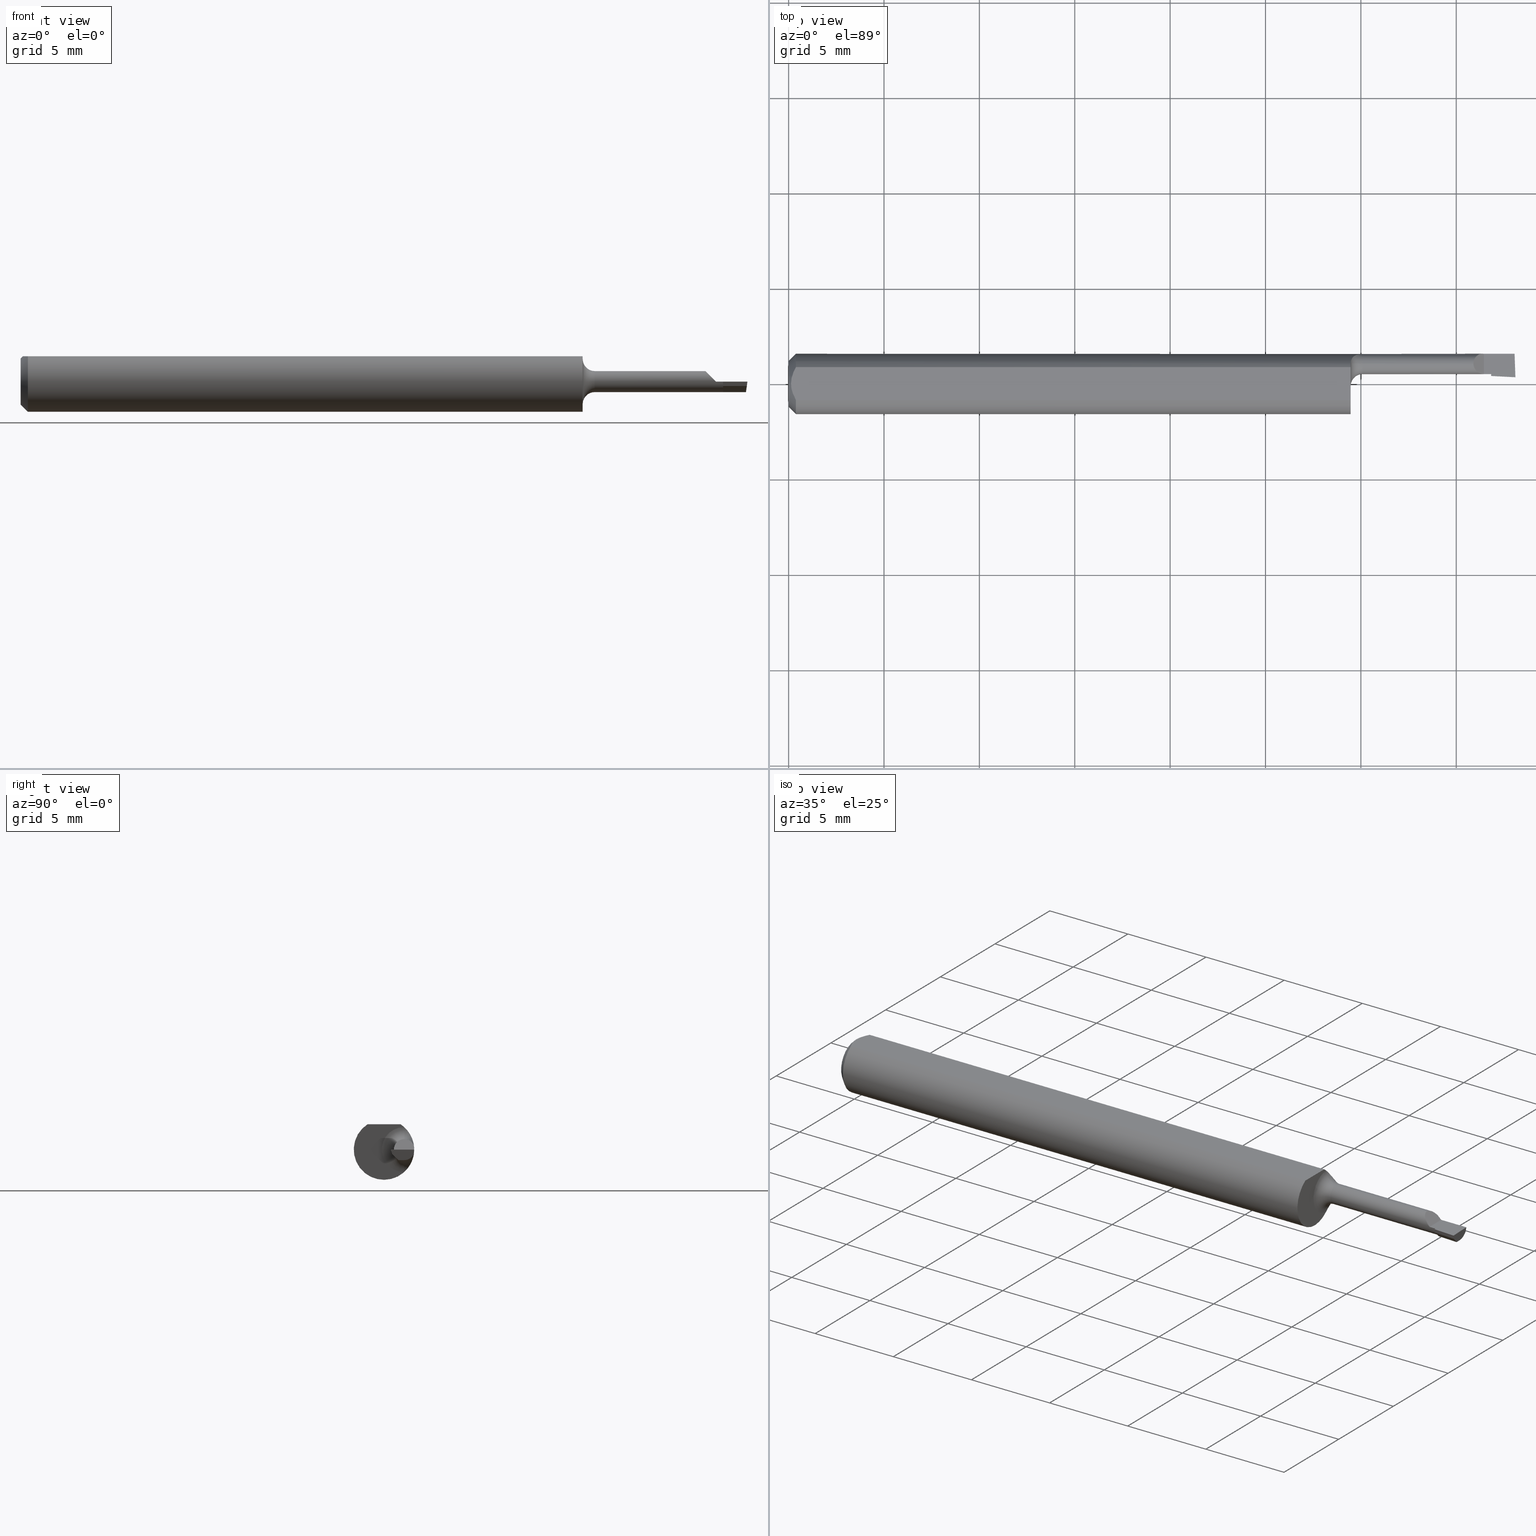
[diagram: canonical four-view strip — front | top / right | iso, engineering-drawing reading convention]
A machine part, canonical four-view strip (front | top / right | iso — engineering-drawing reading convention). The complete STEP part file that produces these views, byte-faithful:
ISO-10303-21;
HEADER;
FILE_DESCRIPTION (( 'STEP AP203' ),
    '1' );
FILE_NAME ('211800-LHB050300.STEP',
    '2024-08-22T18:05:27',
    ( '' ),
    ( '' ),
    'SwSTEP 2.0',
    'SolidWorks 2024',
    '' );
FILE_SCHEMA (( 'CONFIG_CONTROL_DESIGN' ));
ENDSEC;

DATA;
#1 = DIRECTION ( 'NONE',  ( 0.000000000000000000, -7.598598113218357399E-17, -1.000000000000000000 ) ) ;
#2 = CIRCLE ( 'NONE', #352, 0.06235000000000000264 ) ;
#3 = CARTESIAN_POINT ( 'NONE',  ( 1.435000000000000053, 0.02034999999999996187, 7.469896857675718968E-18 ) ) ;
#4 = EDGE_CURVE ( 'NONE', #273, #585, #323, .T. ) ;
#5 = CARTESIAN_POINT ( 'NONE',  ( 1.160002154187601331, 0.04179221831807067300, -0.04627107114684035627 ) ) ;
#6 = ORIENTED_EDGE ( 'NONE', *, *, #529, .F. ) ;
#7 = CC_DESIGN_PERSON_AND_ORGANIZATION_ASSIGNMENT ( #446, #135, ( #125 ) ) ;
#8 = CARTESIAN_POINT ( 'NONE',  ( 1.450000000000000178, -0.2500000000000000555, 5.746074505904401932E-18 ) ) ;
#9 = DIRECTION ( 'NONE',  ( 1.000000000000000000, 0.000000000000000000, 0.000000000000000000 ) ) ;
#10 = LINE ( 'NONE', #311, #53 ) ;
#11 = EDGE_LOOP ( 'NONE', ( #204, #123, #132, #439, #633, #126, #202, #164, #24, #61, #447, #655, #276, #601, #477 ) ) ;
#12 = FACE_OUTER_BOUND ( 'NONE', #544, .T. ) ;
#13 = CARTESIAN_POINT ( 'NONE',  ( 1.498307515265092205, 0.06234999999999984999, 4.252919012001033187E-19 ) ) ;
#14 = ORIENTED_EDGE ( 'NONE', *, *, #117, .F. ) ;
#15 = DIRECTION ( 'NONE',  ( 1.000000000000000000, 0.000000000000000000, 0.000000000000000000 ) ) ;
#16 = VECTOR ( 'NONE', #589, 39.37007874015748143 ) ;
#17 = EDGE_CURVE ( 'NONE', #157, #226, #469, .T. ) ;
#18 = FACE_OUTER_BOUND ( 'NONE', #437, .T. ) ;
#19 = APPROVAL_STATUS ( 'not_yet_approved' ) ;
#20 = ORIENTED_EDGE ( 'NONE', *, *, #51, .F. ) ;
#21 = CARTESIAN_POINT ( 'NONE',  ( 1.164503367413919577, 0.05514048125192551331, -0.02935827858479101576 ) ) ;
#22 = ADVANCED_FACE ( 'NONE', ( #637 ), #632, .F. ) ;
#23 = APPROVAL_DATE_TIME ( #329, #636 ) ;
#24 = ORIENTED_EDGE ( 'NONE', *, *, #44, .F. ) ;
#25 = B_SPLINE_CURVE_WITH_KNOTS ( 'NONE', 3,
 ( #207, #416, #628, #576, #262, #210, #213, #21, #534, #73, #174, #274 ),
 .UNSPECIFIED., .F., .F.,
 ( 4, 2, 2, 2, 2, 4 ),
 ( 1.956466010703177504E-07, 0.0001677086840062927419, 0.0003352217214115151282, 0.0006702477962219671650, 0.001005273871032419039, 0.001340299945842871347 ),
 .UNSPECIFIED. ) ;
#26 = CARTESIAN_POINT ( 'NONE',  ( 1.185000000000000275, 0.04200000000000000955, 0.000000000000000000 ) ) ;
#27 = ADVANCED_FACE ( 'NONE', ( #481 ), #512, .F. ) ;
#28 = CIRCLE ( 'NONE', #523, 0.02165000000000004768 ) ;
#29 = DATE_AND_TIME ( #284, #607 ) ;
#30 = ORGANIZATION ( 'UNSPECIFIED', 'UNSPECIFIED', '' ) ;
#31 = EDGE_LOOP ( 'NONE', ( #6, #560, #537, #143, #508, #377 ) ) ;
#32 = FACE_OUTER_BOUND ( 'NONE', #335, .T. ) ;
#33 = FACE_OUTER_BOUND ( 'NONE', #472, .T. ) ;
#34 = DATE_TIME_ROLE ( 'classification_date' ) ;
#35 = ORIENTED_EDGE ( 'NONE', *, *, #112, .F. ) ;
#36 = DIRECTION ( 'NONE',  ( 0.000000000000000000, 0.000000000000000000, 1.000000000000000000 ) ) ;
#37 = PERSON_AND_ORGANIZATION ( #526, #30 ) ;
#38 = ORIENTED_EDGE ( 'NONE', *, *, #51, .T. ) ;
#39 = DIRECTION ( 'NONE',  ( -0.03489949670250591662, 0.9993908270190955401, 4.749892244972772008E-18 ) ) ;
#40 = CARTESIAN_POINT ( 'NONE',  ( 1.500000000000000666, 0.01388357845370044759, 1.723411917878041112E-16 ) ) ;
#41 = CIRCLE ( 'NONE', #428, 0.06235000000000000264 ) ;
#42 = VERTEX_POINT ( 'NONE', #422 ) ;
#43 = AXIS2_PLACEMENT_3D ( 'NONE', #608, #138, #401 ) ;
#44 = EDGE_CURVE ( 'NONE', #69, #531, #41, .T. ) ;
#45 = CARTESIAN_POINT ( 'NONE',  ( 1.413349999999999662, 0.05073296928954763862, 0.02165000000000002686 ) ) ;
#46 = CARTESIAN_POINT ( 'NONE',  ( 1.498307515265092205, 0.06234999999999984999, 4.252919012001033187E-19 ) ) ;
#47 = VERTEX_POINT ( 'NONE', #109 ) ;
#48 = PLANE ( 'NONE',  #152 ) ;
#49 = PRODUCT_RELATED_PRODUCT_CATEGORY ( 'detail', '', ( #613 ) ) ;
#50 = CARTESIAN_POINT ( 'NONE',  ( 0.004999999999989933504, 7.898418140378181697E-16, 0.05235000000000000070 ) ) ;
#51 = EDGE_CURVE ( 'NONE', #47, #585, #58, .T. ) ;
#52 = ORIENTED_EDGE ( 'NONE', *, *, #148, .T. ) ;
#53 = VECTOR ( 'NONE', #425, 39.37007874015748143 ) ;
#54 = VECTOR ( 'NONE', #645, 39.37007874015748143 ) ;
#55 = DIRECTION ( 'NONE',  ( -1.000000000000000000, -0.000000000000000000, -0.000000000000000000 ) ) ;
#56 = CARTESIAN_POINT ( 'NONE',  ( 1.473758310345527622, 0.01296719845820266427, -0.2304607446100246093 ) ) ;
#57 = DESIGN_CONTEXT ( 'detailed design', #383, 'design' ) ;
#58 = LINE ( 'NONE', #642, #318 ) ;
#59 = DIRECTION ( 'NONE',  ( -0.9929665985475222278, -0.03467515770088774874, 0.1132032137679070405 ) ) ;
#60 = DIRECTION ( 'NONE',  ( -0.000000000000000000, 1.000000000000000000, -9.469800310816217580E-17 ) ) ;
#61 = ORIENTED_EDGE ( 'NONE', *, *, #561, .T. ) ;
#62 = LINE ( 'NONE', #522, #101 ) ;
#63 = DIRECTION ( 'NONE',  ( 0.1183632232296001896, -0.3128294419703177009, 0.9424053732992185850 ) ) ;
#64 = ORIENTED_EDGE ( 'NONE', *, *, #683, .F. ) ;
#65 = CARTESIAN_POINT ( 'NONE',  ( 0.01500000000000185039, -0.03386738844380016850, 0.05235000000000000070 ) ) ;
#66 = EDGE_CURVE ( 'NONE', #585, #305, #391, .T. ) ;
#67 = CARTESIAN_POINT ( 'NONE',  ( 1.450000000000000178, 0.006470388964151904676, 0.000000000000000000 ) ) ;
#68 = CARTESIAN_POINT ( 'NONE',  ( 1.450000000000000178, 0.04200000000000000955, -0.02165000000000000951 ) ) ;
#69 = VERTEX_POINT ( 'NONE', #376 ) ;
#70 = DIRECTION ( 'NONE',  ( 0.000000000000000000, 0.000000000000000000, 1.000000000000000000 ) ) ;
#71 = CARTESIAN_POINT ( 'NONE',  ( 1.445230175387622662, 0.01968223371965590121, -0.008999999999999999320 ) ) ;
#72 = ORIENTED_EDGE ( 'NONE', *, *, #330, .T. ) ;
#73 = CARTESIAN_POINT ( 'NONE',  ( 1.160670077248453946, 0.04815584287052725176, -0.03982895007941800181 ) ) ;
#74 = PERSON_AND_ORGANIZATION ( #526, #30 ) ;
#75 = VERTEX_POINT ( 'NONE', #220 ) ;
#76 = CARTESIAN_POINT ( 'NONE',  ( 1.500000000000000222, 0.04200000000000000955, -0.02165000000000000951 ) ) ;
#77 = ORIENTED_EDGE ( 'NONE', *, *, #4, .F. ) ;
#78 = LINE ( 'NONE', #283, #676 ) ;
#79 = PERSON_AND_ORGANIZATION_ROLE ( 'classification_officer' ) ;
#80 = ORIENTED_EDGE ( 'NONE', *, *, #624, .F. ) ;
#81 = CARTESIAN_POINT ( 'NONE',  ( 0.000000000000000000, 0.04200000000000000955, 0.02165000000000002686 ) ) ;
#82 = CARTESIAN_POINT ( 'NONE',  ( 1.185000000000000275, 0.04200000000000000955, 0.04665000000000004560 ) ) ;
#83 = CIRCLE ( 'NONE', #618, 0.02165000000000000951 ) ;
#84 = PERSON_AND_ORGANIZATION_ROLE ( 'creator' ) ;
#85 = VECTOR ( 'NONE', #363, 39.37007874015748143 ) ;
#86 = ORIENTED_EDGE ( 'NONE', *, *, #117, .T. ) ;
#87 = CARTESIAN_POINT ( 'NONE',  ( 1.413349999999999884, 0.04200000000000000955, 0.02165000000000002686 ) ) ;
#88 = EDGE_LOOP ( 'NONE', ( #194, #380 ) ) ;
#89 = APPROVAL ( #19, 'UNSPECIFIED' ) ;
#90 = ORIENTED_EDGE ( 'NONE', *, *, #107, .F. ) ;
#91 = EDGE_CURVE ( 'NONE', #434, #498, #10, .T. ) ;
#92 = CARTESIAN_POINT ( 'NONE',  ( 1.418074042879263752, 0.05807791118768803468, 0.01692595712073615907 ) ) ;
#93 = DIRECTION ( 'NONE',  ( 0.000000000000000000, 0.000000000000000000, 1.000000000000000000 ) ) ;
#94 = CIRCLE ( 'NONE', #539, 0.02165000000000004768 ) ;
#95 = CARTESIAN_POINT ( 'NONE',  ( 1.500000000000000222, 0.04200000000000000955, -0.02165000000000000951 ) ) ;
#96 = VERTEX_POINT ( 'NONE', #371 ) ;
#97 = CARTESIAN_POINT ( 'NONE',  ( 0.000000000000000000, 6.717187693323211459E-18, 0.04734999999999965625 ) ) ;
#98 = PRODUCT_DEFINITION ( 'UNKNOWN', '', #125, #57 ) ;
#99 = CARTESIAN_POINT ( 'NONE',  ( 0.000000000000000000, 0.000000000000000000, 0.000000000000000000 ) ) ;
#100 = VECTOR ( 'NONE', #275, 39.37007874015748143 ) ;
#101 = VECTOR ( 'NONE', #516, 39.37007874015748143 ) ;
#102 = CC_DESIGN_SECURITY_CLASSIFICATION ( #641, ( #125 ) ) ;
#103 = CARTESIAN_POINT ( 'NONE',  ( 1.422317723625377450, 0.02034999999999997575, 0.01268227637462250416 ) ) ;
#104 = LINE ( 'NONE', #518, #386 ) ;
#105 = DIRECTION ( 'NONE',  ( 0.000000000000000000, 0.000000000000000000, 1.000000000000000000 ) ) ;
#106 = ORIENTED_EDGE ( 'NONE', *, *, #330, .F. ) ;
#107 = EDGE_CURVE ( 'NONE', #272, #463, #343, .T. ) ;
#108 = CARTESIAN_POINT ( 'NONE',  ( 1.317500000000000115, 0.06169999999999998402, 0.008979560122856904483 ) ) ;
#109 = CARTESIAN_POINT ( 'NONE',  ( 1.496981654460871614, 0.02963741380368778433, -0.02165000000000000951 ) ) ;
#110 = CIRCLE ( 'NONE', #308, 0.02165000000000004768 ) ;
#111 = CIRCLE ( 'NONE', #514, 0.06235000000000000264 ) ;
#112 = EDGE_CURVE ( 'NONE', #273, #186, #119, .T. ) ;
#113 = LINE ( 'NONE', #634, #332 ) ;
#114 = EDGE_LOOP ( 'NONE', ( #342, #173, #440 ) ) ;
#115 = ORIENTED_EDGE ( 'NONE', *, *, #249, .F. ) ;
#116 = LINE ( 'NONE', #161, #288 ) ;
#117 = EDGE_CURVE ( 'NONE', #47, #157, #104, .T. ) ;
#118 = DIRECTION ( 'NONE',  ( 0.000000000000000000, 0.000000000000000000, 1.000000000000000000 ) ) ;
#119 = LINE ( 'NONE', #476, #467 ) ;
#120 = EDGE_LOOP ( 'NONE', ( #14, #38, #77, #348 ) ) ;
#121 = CARTESIAN_POINT ( 'NONE',  ( 0.01500000000000000465, 0.000000000000000000, -0.06235000000000000264 ) ) ;
#122 =( NAMED_UNIT ( * ) PLANE_ANGLE_UNIT ( ) SI_UNIT ( $, .RADIAN. ) );
#123 = ORIENTED_EDGE ( 'NONE', *, *, #107, .T. ) ;
#124 = CARTESIAN_POINT ( 'NONE',  ( 1.175584872132278358, 0.06074967455721213411, 0.01413090964346022486 ) ) ;
#125 = PRODUCT_DEFINITION_FORMATION_WITH_SPECIFIED_SOURCE ( 'ANY', '', #613, .NOT_KNOWN. ) ;
#126 = ORIENTED_EDGE ( 'NONE', *, *, #406, .T. ) ;
#127 = CARTESIAN_POINT ( 'NONE',  ( 0.01500000000000000465, 0.000000000000000000, 0.000000000000000000 ) ) ;
#128 = APPLICATION_PROTOCOL_DEFINITION ( 'international standard', 'config_control_design', 1994, #383 ) ;
#129 = ORIENTED_EDGE ( 'NONE', *, *, #411, .T. ) ;
#130 = CARTESIAN_POINT ( 'NONE',  ( 0.000000000000000000, 0.04200000000000000955, 0.000000000000000000 ) ) ;
#131 = PERSON_AND_ORGANIZATION ( #526, #30 ) ;
#132 = ORIENTED_EDGE ( 'NONE', *, *, #499, .T. ) ;
#133 = CARTESIAN_POINT ( 'NONE',  ( 1.435000000000000053, 0.06234999999999984999, 7.469896857675718968E-18 ) ) ;
#134 = CIRCLE ( 'NONE', #448, 0.02500000000000000139 ) ;
#135 = PERSON_AND_ORGANIZATION_ROLE ( 'design_supplier' ) ;
#136 = APPROVAL_PERSON_ORGANIZATION ( #278, #89, #183 ) ;
#137 = ORIENTED_EDGE ( 'NONE', *, *, #403, .F. ) ;
#138 = DIRECTION ( 'NONE',  ( -0.7071067811865432429, 0.000000000000000000, -0.7071067811865517916 ) ) ;
#139 = FACE_OUTER_BOUND ( 'NONE', #177, .T. ) ;
#140 = EDGE_CURVE ( 'NONE', #226, #498, #83, .T. ) ;
#141 = ORIENTED_EDGE ( 'NONE', *, *, #339, .F. ) ;
#142 = DIRECTION ( 'NONE',  ( 0.000000000000000000, 0.000000000000000000, -1.000000000000000000 ) ) ;
#143 = ORIENTED_EDGE ( 'NONE', *, *, #298, .F. ) ;
#144 = CARTESIAN_POINT ( 'NONE',  ( 0.000000000000000000, 0.000000000000000000, -0.04734999999999965625 ) ) ;
#145 = B_SPLINE_CURVE_WITH_KNOTS ( 'NONE', 3,
 ( #270, #387, #324, #328 ),
 .UNSPECIFIED., .F., .F.,
 ( 4, 4 ),
 ( 4.582666268723168045E-07, 2.170104865268451287E-05 ),
 .UNSPECIFIED. ) ;
#146 = CLOSED_SHELL ( 'NONE', ( #175, #196, #27, #350, #621, #465, #456, #679, #22, #312, #574, #444, #242, #671, #307, #155, #230, #206, #389 ) ) ;
#147 = APPROVAL_PERSON_ORGANIZATION ( #131, #464, #399 ) ;
#148 = EDGE_CURVE ( 'NONE', #241, #75, #28, .T. ) ;
#149 = PLANE ( 'NONE',  #675 ) ;
#150 = FACE_OUTER_BOUND ( 'NONE', #264, .T. ) ;
#151 = FACE_OUTER_BOUND ( 'NONE', #491, .T. ) ;
#152 = AXIS2_PLACEMENT_3D ( 'NONE', #289, #402, #349 ) ;
#153 = AXIS2_PLACEMENT_3D ( 'NONE', #490, #654, #556 ) ;
#154 = CARTESIAN_POINT ( 'NONE',  ( 0.000000000000000000, 0.04200000000000000955, 0.000000000000000000 ) ) ;
#155 = ADVANCED_FACE ( 'NONE', ( #185 ), #394, .F. ) ;
#156 = CARTESIAN_POINT ( 'NONE',  ( 1.159999999999991482, 0.04158309226468336756, -0.04645910121876680593 ) ) ;
#157 = VERTEX_POINT ( 'NONE', #493 ) ;
#158 = DIRECTION ( 'NONE',  ( 0.000000000000000000, 0.000000000000000000, 1.000000000000000000 ) ) ;
#159 = CARTESIAN_POINT ( 'NONE',  ( 0.004999999999989933504, 7.898418140378181697E-16, 0.05235000000000000070 ) ) ;
#160 = CARTESIAN_POINT ( 'NONE',  ( 0.01500000000000000465, 0.000000000000000000, 0.000000000000000000 ) ) ;
#161 = CARTESIAN_POINT ( 'NONE',  ( 1.513791672468667526, 0.01316078752701859214, -1.584959551319857884E-18 ) ) ;
#162 = CARTESIAN_POINT ( 'NONE',  ( 1.435000000000000053, -0.2500000000000000555, 7.469896857675718968E-18 ) ) ;
#163 = ORIENTED_EDGE ( 'NONE', *, *, #519, .F. ) ;
#164 = ORIENTED_EDGE ( 'NONE', *, *, #649, .F. ) ;
#165 = EDGE_CURVE ( 'NONE', #42, #75, #134, .T. ) ;
#166 = CONICAL_SURFACE ( 'NONE', #552, 0.06235000000000000264, 0.7853981633974596033 ) ;
#167 = VECTOR ( 'NONE', #251, 39.37007874015748143 ) ;
#168 = CARTESIAN_POINT ( 'NONE',  ( 1.171137345355671933, 0.05951103980767498414, 0.01888626235242482979 ) ) ;
#169 = CARTESIAN_POINT ( 'NONE',  ( 1.497630533948310916, 0.06213295572546700257, -0.006004651787055691192 ) ) ;
#170 = ORIENTED_EDGE ( 'NONE', *, *, #91, .T. ) ;
#171 = LINE ( 'NONE', #378, #16 ) ;
#172 = LINE ( 'NONE', #162, #564 ) ;
#173 = ORIENTED_EDGE ( 'NONE', *, *, #165, .T. ) ;
#174 = CARTESIAN_POINT ( 'NONE',  ( 1.160074194741583575, 0.04526839251566676381, -0.04310279966243765054 ) ) ;
#175 = ADVANCED_FACE ( 'NONE', ( #139 ), #599, .T. ) ;
#176 = PERSON_AND_ORGANIZATION_ROLE ( 'creator' ) ;
#177 = EDGE_LOOP ( 'NONE', ( #551, #672, #245, #643, #532 ) ) ;
#178 = AXIS2_PLACEMENT_3D ( 'NONE', #26, #315, #236 ) ;
#179 = CARTESIAN_POINT ( 'NONE',  ( 1.177175290836501409, 0.06107452517360630745, 0.01261403876978727141 ) ) ;
#180 = AXIS2_PLACEMENT_3D ( 'NONE', #225, #590, #118 ) ;
#181 = EDGE_LOOP ( 'NONE', ( #393, #291, #86, #367 ) ) ;
#182 = DIRECTION ( 'NONE',  ( -1.000000000000000000, -0.000000000000000000, -0.000000000000000000 ) ) ;
#183 = APPROVAL_ROLE ( '' ) ;
#184 = ORIENTED_EDGE ( 'NONE', *, *, #545, .T. ) ;
#185 = FACE_OUTER_BOUND ( 'NONE', #181, .T. ) ;
#186 = VERTEX_POINT ( 'NONE', #453 ) ;
#187 = CIRCLE ( 'NONE', #582, 0.04734999999999965625 ) ;
#188 = CARTESIAN_POINT ( 'NONE',  ( 1.444907080710536862, 0.01351722002310443670, 0.01000000000000000021 ) ) ;
#189 = VECTOR ( 'NONE', #504, 39.37007874015748143 ) ;
#190 = APPROVAL_STATUS ( 'not_yet_approved' ) ;
#191 = VECTOR ( 'NONE', #39, 39.37007874015748143 ) ;
#192 = ORIENTED_EDGE ( 'NONE', *, *, #384, .F. ) ;
#193 = DIRECTION ( 'NONE',  ( 0.000000000000000000, -1.000000000000000000, 0.000000000000000000 ) ) ;
#194 = ORIENTED_EDGE ( 'NONE', *, *, #614, .T. ) ;
#195 = FACE_OUTER_BOUND ( 'NONE', #452, .T. ) ;
#196 = ADVANCED_FACE ( 'NONE', ( #301 ), #197, .T. ) ;
#197 = CYLINDRICAL_SURFACE ( 'NONE', #234, 0.02165000000000002686 ) ;
#198 = AXIS2_PLACEMENT_3D ( 'NONE', #154, #511, #678 ) ;
#199 = VERTEX_POINT ( 'NONE', #144 ) ;
#200 = DIRECTION ( 'NONE',  ( 1.000000000000000000, 0.000000000000000000, 0.000000000000000000 ) ) ;
#201 = DIRECTION ( 'NONE',  ( -1.000000000000000000, -0.000000000000000000, -0.000000000000000000 ) ) ;
#202 = ORIENTED_EDGE ( 'NONE', *, *, #519, .T. ) ;
#203 = DIRECTION ( 'NONE',  ( 0.7071067811865395791, 0.000000000000000000, -0.7071067811865555663 ) ) ;
#204 = ORIENTED_EDGE ( 'NONE', *, *, #659, .T. ) ;
#205 = CC_DESIGN_DATE_AND_TIME_ASSIGNMENT ( #240, #547, ( #98 ) ) ;
#206 = ADVANCED_FACE ( 'NONE', ( #507 ), #48, .F. ) ;
#207 = CARTESIAN_POINT ( 'NONE',  ( 1.185000000000000275, 0.06170000000000000484, -0.008979560122856930504 ) ) ;
#208 = ORIENTED_EDGE ( 'NONE', *, *, #325, .T. ) ;
#209 = AXIS2_PLACEMENT_3D ( 'NONE', #253, #200, #622 ) ;
#210 = CARTESIAN_POINT ( 'NONE',  ( 1.171164219611748880, 0.05951808255707905643, -0.01885829980402589645 ) ) ;
#211 = FACE_OUTER_BOUND ( 'NONE', #281, .T. ) ;
#212 = ORIENTED_EDGE ( 'NONE', *, *, #652, .T. ) ;
#213 = CARTESIAN_POINT ( 'NONE',  ( 1.168638811239069764, 0.05833681936465647672, -0.02234271023335328982 ) ) ;
#214 = DIRECTION ( 'NONE',  ( 0.000000000000000000, 0.000000000000000000, -1.000000000000000000 ) ) ;
#215 = EDGE_CURVE ( 'NONE', #96, #297, #653, .T. ) ;
#216 = DIRECTION ( 'NONE',  ( 0.1044745908303220117, -0.7064477862276269393, 0.7000118464747019376 ) ) ;
#217 = ORIENTED_EDGE ( 'NONE', *, *, #384, .T. ) ;
#218 = DIRECTION ( 'NONE',  ( 0.7071067811865395791, 8.659560562355031466E-17, 0.7071067811865555663 ) ) ;
#219 = CC_DESIGN_PERSON_AND_ORGANIZATION_ASSIGNMENT ( #290, #665, ( #613 ) ) ;
#220 = CARTESIAN_POINT ( 'NONE',  ( 1.185000000000000275, 0.04200000000000000955, 0.02165000000000004768 ) ) ;
#221 = VERTEX_POINT ( 'NONE', #455 ) ;
#222 = VECTOR ( 'NONE', #63, 39.37007874015748143 ) ;
#223 = CARTESIAN_POINT ( 'NONE',  ( 1.160006460274299878, 0.04199999999999771277, 0.04608169376227606862 ) ) ;
#224 =( BOUNDED_CURVE ( )  B_SPLINE_CURVE ( 3, ( #581, #227, #528, #478 ),
 .UNSPECIFIED., .F., .T. ) 
 B_SPLINE_CURVE_WITH_KNOTS ( ( 4, 4 ),
 ( 5.437303047992022798, 6.580420033176219263 ),
 .UNSPECIFIED. ) 
 CURVE ( )  GEOMETRIC_REPRESENTATION_ITEM ( )  RATIONAL_B_SPLINE_CURVE ( ( 1.000000000000000000, 0.8940392936708234650, 0.8940392936708234650, 1.000000000000000000 ) ) 
 REPRESENTATION_ITEM ( '' )  );
#225 = CARTESIAN_POINT ( 'NONE',  ( 0.000000000000000000, 0.000000000000000000, 0.000000000000000000 ) ) ;
#226 = VERTEX_POINT ( 'NONE', #340 ) ;
#227 = CARTESIAN_POINT ( 'NONE',  ( 1.496527055185697952, 0.05807791118768796529, -0.01692595712073620765 ) ) ;
#228 = APPROVAL_DATE_TIME ( #231, #89 ) ;
#229 = DIRECTION ( 'NONE',  ( -1.000000000000000000, -0.000000000000000000, -0.000000000000000000 ) ) ;
#230 = ADVANCED_FACE ( 'NONE', ( #195 ), #673, .F. ) ;
#231 = DATE_AND_TIME ( #543, #235 ) ;
#232 = UNCERTAINTY_MEASURE_WITH_UNIT (LENGTH_MEASURE( 1.000000000000000082E-05 ), #271, 'distance_accuracy_value', 'NONE');
#233 = ORIENTED_EDGE ( 'NONE', *, *, #379, .T. ) ;
#234 = AXIS2_PLACEMENT_3D ( 'NONE', #667, #565, #93 ) ;
#235 = LOCAL_TIME ( 11, 5, 27.00000000000000000, #334 ) ;
#236 = DIRECTION ( 'NONE',  ( 0.000000000000000000, 0.000000000000000000, 1.000000000000000000 ) ) ;
#237 = B_SPLINE_CURVE_WITH_KNOTS ( 'NONE', 3,
 ( #462, #5, #156, #530 ),
 .UNSPECIFIED., .F., .F.,
 ( 4, 4 ),
 ( 0.001340299945842871347, 0.001361598575378359429 ),
 .UNSPECIFIED. ) ;
#238 = VERTEX_POINT ( 'NONE', #87 ) ;
#239 = CARTESIAN_POINT ( 'NONE',  ( 1.160000000000000142, -0.004650000000000042120, 0.000000000000000000 ) ) ;
#240 = DATE_AND_TIME ( #497, #409 ) ;
#241 = VERTEX_POINT ( 'NONE', #550 ) ;
#242 = ADVANCED_FACE ( 'NONE', ( #33 ), #612, .F. ) ;
#243 = DIRECTION ( 'NONE',  ( 0.000000000000000000, 0.000000000000000000, 1.000000000000000000 ) ) ;
#244 = APPROVAL_ROLE ( '' ) ;
#245 = ORIENTED_EDGE ( 'NONE', *, *, #325, .F. ) ;
#246 = TOROIDAL_SURFACE ( 'NONE', #299, 0.04665000000000004560, 0.02500000000000000139 ) ;
#247 = CARTESIAN_POINT ( 'NONE',  ( 1.413349999999999884, 0.04200000000000000955, 0.02165000000000002686 ) ) ;
#248 = ORIENTED_EDGE ( 'NONE', *, *, #4, .T. ) ;
#249 = EDGE_CURVE ( 'NONE', #75, #482, #110, .T. ) ;
#250 = DIRECTION ( 'NONE',  ( -0.000000000000000000, 9.469800310816217580E-17, 1.000000000000000000 ) ) ;
#251 = DIRECTION ( 'NONE',  ( 0.000000000000000000, -0.7075914797155321567, 0.7066217501846258076 ) ) ;
#252 = CARTESIAN_POINT ( 'NONE',  ( 1.160000000000000142, 0.000000000000000000, 0.000000000000000000 ) ) ;
#253 = CARTESIAN_POINT ( 'NONE',  ( 0.01500000000000000465, 0.000000000000000000, 0.000000000000000000 ) ) ;
#254 = CARTESIAN_POINT ( 'NONE',  ( 0.004999999999999268051, 0.005945714695019509340, 0.05235000000000000070 ) ) ;
#255 = AXIS2_PLACEMENT_3D ( 'NONE', #629, #1, #319 ) ;
#256 = ORIENTED_EDGE ( 'NONE', *, *, #298, .T. ) ;
#257 = APPROVAL_PERSON_ORGANIZATION ( #37, #636, #244 ) ;
#258 = CARTESIAN_POINT ( 'NONE',  ( 1.160000000000000142, -0.03386738844380016850, 0.05235000000000000070 ) ) ;
#259 = CARTESIAN_POINT ( 'NONE',  ( 0.009669996313769781138, 0.02323004575534280344, 0.05234999999999997988 ) ) ;
#260 = LINE ( 'NONE', #8, #626 ) ;
#261 = DIRECTION ( 'NONE',  ( -0.9986295347545738332, 0.05233595624294396648, -5.947502225435081911E-18 ) ) ;
#262 = CARTESIAN_POINT ( 'NONE',  ( 1.175565359643935714, 0.06074446073968790827, -0.01415138756931504788 ) ) ;
#263 = CIRCLE ( 'NONE', #593, 0.02500000000000000139 ) ;
#264 = EDGE_LOOP ( 'NONE', ( #647, #385, #141, #115 ) ) ;
#265 = CARTESIAN_POINT ( 'NONE',  ( 0.006064493299689846517, 0.01189382783781396842, 0.05235000000000000764 ) ) ;
#266 = EDGE_CURVE ( 'NONE', #487, #268, #412, .T. ) ;
#267 = DIRECTION ( 'NONE',  ( -1.000000000000000000, -0.000000000000000000, -0.000000000000000000 ) ) ;
#268 = VERTEX_POINT ( 'NONE', #133 ) ;
#269 = ORIENTED_EDGE ( 'NONE', *, *, #44, .T. ) ;
#270 = CARTESIAN_POINT ( 'NONE',  ( 1.160000000000000142, 0.04137261904761900533, 0.04664578108618819968 ) ) ;
#271 =( CONVERSION_BASED_UNIT ( 'INCH', #322 ) LENGTH_UNIT ( ) NAMED_UNIT ( #433 ) );
#272 = VERTEX_POINT ( 'NONE', #46 ) ;
#273 = VERTEX_POINT ( 'NONE', #345 ) ;
#274 = CARTESIAN_POINT ( 'NONE',  ( 1.160006460274302986, 0.04200000000015000762, -0.04608169376213724217 ) ) ;
#275 = DIRECTION ( 'NONE',  ( 0.9986295347545738332, -0.05233595624294397342, -0.000000000000000000 ) ) ;
#276 = ORIENTED_EDGE ( 'NONE', *, *, #475, .T. ) ;
#277 = PLANE ( 'NONE',  #640 ) ;
#278 = PERSON_AND_ORGANIZATION ( #526, #30 ) ;
#279 = APPLICATION_CONTEXT ( 'configuration controlled 3d designs of mechanical parts and assemblies' ) ;
#280 = DIRECTION ( 'NONE',  ( -1.000000000000000000, -0.000000000000000000, -0.000000000000000000 ) ) ;
#281 = EDGE_LOOP ( 'NONE', ( #662, #358, #681, #137, #578 ) ) ;
#282 = B_SPLINE_CURVE_WITH_KNOTS ( 'NONE', 3,
 ( #468, #631, #471, #317, #586, #159 ),
 .UNSPECIFIED., .F., .F.,
 ( 4, 2, 4 ),
 ( 0.002133667072902290657, 0.002585433046183636171, 0.003037199019464981685 ),
 .UNSPECIFIED. ) ;
#283 = CARTESIAN_POINT ( 'NONE',  ( 1.317500000000000115, 0.06169999999999998402, -0.008979560122856904483 ) ) ;
#284 = CALENDAR_DATE ( 2024, 22, 8 ) ;
#285 = ORIENTED_EDGE ( 'NONE', *, *, #644, .F. ) ;
#286 = AXIS2_PLACEMENT_3D ( 'NONE', #188, #451, #505 ) ;
#287 = DIRECTION ( 'NONE',  ( -1.000000000000000000, -0.000000000000000000, -0.000000000000000000 ) ) ;
#288 = VECTOR ( 'NONE', #474, 39.37007874015748854 ) ;
#289 = CARTESIAN_POINT ( 'NONE',  ( 1.445230175387622662, 0.01968223371965590121, -0.008999999999999999320 ) ) ;
#290 = PERSON_AND_ORGANIZATION ( #526, #30 ) ;
#291 = ORIENTED_EDGE ( 'NONE', *, *, #356, .T. ) ;
#292 = CARTESIAN_POINT ( 'NONE',  ( 1.160000000000000142, 0.04137261904761900533, 0.04664578108618819968 ) ) ;
#293 = PERSON_AND_ORGANIZATION ( #526, #30 ) ;
#294 = ORIENTED_EDGE ( 'NONE', *, *, #649, .T. ) ;
#295 =( BOUNDED_CURVE ( )  B_SPLINE_CURVE ( 3, ( #344, #92, #45, #390 ),
 .UNSPECIFIED., .F., .T. ) 
 B_SPLINE_CURVE_WITH_KNOTS ( ( 4, 4 ),
 ( 5.140068321995384437, 6.283185307179586232 ),
 .UNSPECIFIED. ) 
 CURVE ( )  GEOMETRIC_REPRESENTATION_ITEM ( )  RATIONAL_B_SPLINE_CURVE ( ( 1.000000000000000000, 0.8940392936708223548, 0.8940392936708223548, 1.000000000000000000 ) ) 
 REPRESENTATION_ITEM ( '' )  );
#296 = CARTESIAN_POINT ( 'NONE',  ( 1.426020439877143220, 0.06170000000000000484, 0.008979560122856816012 ) ) ;
#297 = VERTEX_POINT ( 'NONE', #292 ) ;
#298 = EDGE_CURVE ( 'NONE', #238, #434, #359, .T. ) ;
#299 = AXIS2_PLACEMENT_3D ( 'NONE', #414, #55, #158 ) ;
#300 = DIRECTION ( 'NONE',  ( 0.000000000000000000, 0.000000000000000000, 1.000000000000000000 ) ) ;
#301 = FACE_OUTER_BOUND ( 'NONE', #31, .T. ) ;
#302 = ORIENTED_EDGE ( 'NONE', *, *, #506, .F. ) ;
#303 = DIRECTION ( 'NONE',  ( -1.000000000000000000, -0.000000000000000000, -0.000000000000000000 ) ) ;
#304 = CARTESIAN_POINT ( 'NONE',  ( 1.160000000000000142, 0.000000000000000000, 0.000000000000000000 ) ) ;
#305 = VERTEX_POINT ( 'NONE', #40 ) ;
#306 = FACE_OUTER_BOUND ( 'NONE', #597, .T. ) ;
#307 = ADVANCED_FACE ( 'NONE', ( #150 ), #357, .T. ) ;
#308 = AXIS2_PLACEMENT_3D ( 'NONE', #441, #347, #496 ) ;
#309 = EDGE_LOOP ( 'NONE', ( #285, #233, #52, #501, #364, #400 ) ) ;
#310 = CC_DESIGN_APPROVAL ( #89, ( #641 ) ) ;
#311 = CARTESIAN_POINT ( 'NONE',  ( 1.981042333644269815E-32, 0.02034999999999998269, 1.723822351771319809E-16 ) ) ;
#312 = ADVANCED_FACE ( 'NONE', ( #306 ), #513, .F. ) ;
#313 = CARTESIAN_POINT ( 'NONE',  ( 1.450000000000000178, 0.008442439634301685328, 0.001974757005994648082 ) ) ;
#314 = DIRECTION ( 'NONE',  ( -1.000000000000000000, -0.000000000000000000, -0.000000000000000000 ) ) ;
#315 = DIRECTION ( 'NONE',  ( -1.000000000000000000, -0.000000000000000000, -0.000000000000000000 ) ) ;
#316 = CARTESIAN_POINT ( 'NONE',  ( 1.185000000000000275, 0.06170000000000000484, -0.008979560122856930504 ) ) ;
#317 = CARTESIAN_POINT ( 'NONE',  ( 0.006057557792978136152, -0.01187252718384440922, 0.05234999999999998682 ) ) ;
#318 = VECTOR ( 'NONE', #216, 39.37007874015748854 ) ;
#319 = DIRECTION ( 'NONE',  ( 0.000000000000000000, 1.000000000000000000, -7.598598113218357399E-17 ) ) ;
#320 = CIRCLE ( 'NONE', #373, 0.04665000000000004560 ) ;
#321 = CARTESIAN_POINT ( 'NONE',  ( 0.000000000000000000, 0.000000000000000000, 0.000000000000000000 ) ) ;
#322 = LENGTH_MEASURE_WITH_UNIT ( LENGTH_MEASURE( 0.02539999999999999897 ), #432 );
#323 = LINE ( 'NONE', #71, #100 ) ;
#324 = CARTESIAN_POINT ( 'NONE',  ( 1.160002158776226588, 0.04179243973303148341, 0.04627086934374564919 ) ) ;
#325 = EDGE_CURVE ( 'NONE', #346, #241, #94, .T. ) ;
#326 = CARTESIAN_POINT ( 'NONE',  ( 1.160000000000000142, 0.04200000000000000955, 0.000000000000000000 ) ) ;
#327 = DIRECTION ( 'NONE',  ( 0.000000000000000000, -0.3094005013232327128, 0.9509318218363145281 ) ) ;
#328 = CARTESIAN_POINT ( 'NONE',  ( 1.160006460274299878, 0.04199999999999771277, 0.04608169376227606862 ) ) ;
#329 = DATE_AND_TIME ( #594, #524 ) ;
#330 = EDGE_CURVE ( 'NONE', #199, #531, #421, .T. ) ;
#331 = AXIS2_PLACEMENT_3D ( 'NONE', #95, #250, #555 ) ;
#332 = VECTOR ( 'NONE', #218, 39.37007874015748143 ) ;
#333 = FACE_OUTER_BOUND ( 'NONE', #88, .T. ) ;
#334 = COORDINATED_UNIVERSAL_TIME_OFFSET ( 8, 0, .BEHIND. ) ;
#335 = EDGE_LOOP ( 'NONE', ( #388, #184, #256, #588 ) ) ;
#336 = CARTESIAN_POINT ( 'NONE',  ( 1.426020439877143220, 0.06170000000000000484, 0.008979560122856816012 ) ) ;
#337 = APPROVAL_DATE_TIME ( #596, #464 ) ;
#338 = ORIENTED_EDGE ( 'NONE', *, *, #379, .F. ) ;
#339 = EDGE_CURVE ( 'NONE', #482, #487, #567, .T. ) ;
#340 = CARTESIAN_POINT ( 'NONE',  ( 1.450000000000000178, 0.04200000000000000955, -0.02165000000000000951 ) ) ;
#341 = PERSON_AND_ORGANIZATION ( #526, #30 ) ;
#342 = ORIENTED_EDGE ( 'NONE', *, *, #475, .F. ) ;
#343 =( BOUNDED_CURVE ( )  B_SPLINE_CURVE ( 3, ( #13, #429, #169, #587 ),
 .UNSPECIFIED., .F., .T. ) 
 B_SPLINE_CURVE_WITH_KNOTS ( ( 4, 4 ),
 ( 5.009623706381322705, 5.154144874936619658 ),
 .UNSPECIFIED. ) 
 CURVE ( )  GEOMETRIC_REPRESENTATION_ITEM ( )  RATIONAL_B_SPLINE_CURVE ( ( 1.000000000000000000, 0.9982602265499040950, 0.9982602265499040950, 1.000000000000000000 ) ) 
 REPRESENTATION_ITEM ( '' )  );
#344 = CARTESIAN_POINT ( 'NONE',  ( 1.426020439877143220, 0.06170000000000000484, 0.008979560122856816012 ) ) ;
#345 = CARTESIAN_POINT ( 'NONE',  ( 1.450000000000000178, 0.01943225780415161474, -0.008999999999999999320 ) ) ;
#346 = VERTEX_POINT ( 'NONE', #316 ) ;
#347 = DIRECTION ( 'NONE',  ( -1.000000000000000000, -0.000000000000000000, -0.000000000000000000 ) ) ;
#348 = ORIENTED_EDGE ( 'NONE', *, *, #602, .F. ) ;
#349 = DIRECTION ( 'NONE',  ( 0.000000000000000000, -0.7075914797155321567, 0.7066217501846258076 ) ) ;
#350 = ADVANCED_FACE ( 'NONE', ( #572 ), #246, .F. ) ;
#351 = CARTESIAN_POINT ( 'NONE',  ( 1.509203793955957718, -0.2496785964328144536, -1.057713716158484612E-18 ) ) ;
#352 = AXIS2_PLACEMENT_3D ( 'NONE', #304, #461, #105 ) ;
#353 = CARTESIAN_POINT ( 'NONE',  ( 1.185000000000000275, 0.04200000000000000955, 0.000000000000000000 ) ) ;
#354 = CARTESIAN_POINT ( 'NONE',  ( 1.496549943437988528, 0.04200000000000000955, -0.02165000000000000951 ) ) ;
#355 = CARTESIAN_POINT ( 'NONE',  ( 1.413349999999999662, 0.02931772362537750018, 0.02165000000000002686 ) ) ;
#356 = EDGE_CURVE ( 'NONE', #605, #47, #62, .T. ) ;
#357 = CYLINDRICAL_SURFACE ( 'NONE', #198, 0.02165000000000002686 ) ;
#358 = ORIENTED_EDGE ( 'NONE', *, *, #602, .T. ) ;
#359 =( BOUNDED_CURVE ( )  B_SPLINE_CURVE ( 3, ( #247, #355, #103, #3 ),
 .UNSPECIFIED., .F., .T. ) 
 B_SPLINE_CURVE_WITH_KNOTS ( ( 4, 4 ),
 ( 0.000000000000000000, 1.570796326794896780 ),
 .UNSPECIFIED. ) 
 CURVE ( )  GEOMETRIC_REPRESENTATION_ITEM ( )  RATIONAL_B_SPLINE_CURVE ( ( 1.000000000000000000, 0.8047378541243649375, 0.8047378541243649375, 1.000000000000000000 ) ) 
 REPRESENTATION_ITEM ( '' )  );
#360 = CARTESIAN_POINT ( 'NONE',  ( 1.500000000000000222, -0.2500000000000000555, 0.000000000000000000 ) ) ;
#361 = ORIENTED_EDGE ( 'NONE', *, *, #559, .F. ) ;
#362 = DIRECTION ( 'NONE',  ( -0.000000000000000000, 1.000000000000000000, 1.224646799147353207E-16 ) ) ;
#363 = DIRECTION ( 'NONE',  ( 1.000000000000000000, 0.000000000000000000, 0.000000000000000000 ) ) ;
#364 = ORIENTED_EDGE ( 'NONE', *, *, #436, .F. ) ;
#365 = CARTESIAN_POINT ( 'NONE',  ( 1.185000000000000275, 0.04200000000000001649, -0.04665000000000004560 ) ) ;
#366 = CARTESIAN_POINT ( 'NONE',  ( 1.981042333644269815E-32, 0.06234999999999999570, 1.723822351771319809E-16 ) ) ;
#367 = ORIENTED_EDGE ( 'NONE', *, *, #17, .T. ) ;
#368 = EDGE_CURVE ( 'NONE', #404, #199, #187, .T. ) ;
#369 = DIRECTION ( 'NONE',  ( 0.000000000000000000, 0.000000000000000000, -1.000000000000000000 ) ) ;
#370 = VECTOR ( 'NONE', #623, 39.37007874015748143 ) ;
#371 = CARTESIAN_POINT ( 'NONE',  ( 1.160000000000000142, 0.03386738844375224156, 0.05235000000000000070 ) ) ;
#372 = ORIENTED_EDGE ( 'NONE', *, *, #411, .F. ) ;
#373 = AXIS2_PLACEMENT_3D ( 'NONE', #326, #267, #375 ) ;
#374 = CARTESIAN_POINT ( 'NONE',  ( 1.182762534547911804, 0.06169999999999994933, 0.008979560122857185508 ) ) ;
#375 = DIRECTION ( 'NONE',  ( 0.000000000000000000, 0.000000000000000000, 1.000000000000000000 ) ) ;
#376 = CARTESIAN_POINT ( 'NONE',  ( 0.01500000000000000465, 0.03386738844375223462, 0.05234999999999997988 ) ) ;
#377 = ORIENTED_EDGE ( 'NONE', *, *, #148, .F. ) ;
#378 = CARTESIAN_POINT ( 'NONE',  ( 0.000000000000000000, 0.04200000000000000955, -0.02165000000000002686 ) ) ;
#379 = EDGE_CURVE ( 'NONE', #575, #241, #263, .T. ) ;
#380 = ORIENTED_EDGE ( 'NONE', *, *, #368, .T. ) ;
#381 = CARTESIAN_POINT ( 'NONE',  ( 1.168668118509244236, 0.05835572319906700417, 0.02229702727151923816 ) ) ;
#382 = APPLICATION_PROTOCOL_DEFINITION ( 'international standard', 'config_control_design', 1994, #279 ) ;
#383 = APPLICATION_CONTEXT ( 'configuration controlled 3d designs of mechanical parts and assemblies' ) ;
#384 = EDGE_CURVE ( 'NONE', #541, #69, #509, .T. ) ;
#385 = ORIENTED_EDGE ( 'NONE', *, *, #545, .F. ) ;
#386 = VECTOR ( 'NONE', #261, 39.37007874015748854 ) ;
#387 = CARTESIAN_POINT ( 'NONE',  ( 1.160000000000000142, 0.04158331714061497264, 0.04645890176435896884 ) ) ;
#388 = ORIENTED_EDGE ( 'NONE', *, *, #266, .F. ) ;
#389 = ADVANCED_FACE ( 'NONE', ( #151 ), #149, .F. ) ;
#390 = CARTESIAN_POINT ( 'NONE',  ( 1.413349999999999884, 0.04200000000000000955, 0.02165000000000002686 ) ) ;
#391 = LINE ( 'NONE', #527, #222 ) ;
#392 = PRODUCT_DEFINITION_SHAPE ( 'NONE', 'NONE',  #98 ) ;
#393 = ORIENTED_EDGE ( 'NONE', *, *, #484, .F. ) ;
#394 = PLANE ( 'NONE',  #331 ) ;
#395 = ORIENTED_EDGE ( 'NONE', *, *, #624, .T. ) ;
#396 = AXIS2_PLACEMENT_3D ( 'NONE', #360, #460, #466 ) ;
#397 = LOCAL_TIME ( 11, 5, 27.00000000000000000, #540 ) ;
#398 = DIRECTION ( 'NONE',  ( -1.000000000000000000, 0.000000000000000000, -0.000000000000000000 ) ) ;
#399 = APPROVAL_ROLE ( '' ) ;
#400 = ORIENTED_EDGE ( 'NONE', *, *, #652, .F. ) ;
#401 = DIRECTION ( 'NONE',  ( -0.7071067811865516806, 0.000000000000000000, 0.7071067811865431318 ) ) ;
#402 = DIRECTION ( 'NONE',  ( 0.03700710955926819756, 0.7061377159181280172, 0.7071067811865457964 ) ) ;
#403 = EDGE_CURVE ( 'NONE', #498, #186, #260, .T. ) ;
#404 = VERTEX_POINT ( 'NONE', #97 ) ;
#405 = DIRECTION ( 'NONE',  ( -1.000000000000000000, -0.000000000000000000, -0.000000000000000000 ) ) ;
#406 = EDGE_CURVE ( 'NONE', #221, #591, #2, .T. ) ;
#407 = AXIS2_PLACEMENT_3D ( 'NONE', #239, #398, #500 ) ;
#408 = DIRECTION ( 'NONE',  ( 0.000000000000000000, -1.000000000000000000, 0.000000000000000000 ) ) ;
#409 = LOCAL_TIME ( 11, 5, 27.00000000000000000, #442 ) ;
#410 = MANIFOLD_SOLID_BREP ( 'Extrude7', #146 ) ;
#411 = EDGE_CURVE ( 'NONE', #591, #96, #458, .T. ) ;
#412 =( BOUNDED_CURVE ( )  B_SPLINE_CURVE ( 3, ( #296, #558, #670, #603 ),
 .UNSPECIFIED., .F., .T. ) 
 B_SPLINE_CURVE_WITH_KNOTS ( ( 4, 4 ),
 ( 1.426275158239600493, 1.570796326794896558 ),
 .UNSPECIFIED. ) 
 CURVE ( )  GEOMETRIC_REPRESENTATION_ITEM ( )  RATIONAL_B_SPLINE_CURVE ( ( 1.000000000000000000, 0.9982602265499040950, 0.9982602265499040950, 1.000000000000000000 ) ) 
 REPRESENTATION_ITEM ( '' )  );
#413 = DIRECTION ( 'NONE',  ( 1.000000000000000000, 0.000000000000000000, 0.000000000000000000 ) ) ;
#414 = CARTESIAN_POINT ( 'NONE',  ( 1.185000000000000275, 0.04200000000000000955, 0.000000000000000000 ) ) ;
#415 = ORIENTED_EDGE ( 'NONE', *, *, #406, .F. ) ;
#416 = CARTESIAN_POINT ( 'NONE',  ( 1.182753018252281185, 0.06170000000000001178, -0.008979560122856961729 ) ) ;
#417 = VECTOR ( 'NONE', #203, 39.37007874015748143 ) ;
#418 = AXIS2_PLACEMENT_3D ( 'NONE', #566, #303, #510 ) ;
#419 = CYLINDRICAL_SURFACE ( 'NONE', #180, 0.06235000000000000264 ) ;
#420 = CARTESIAN_POINT ( 'NONE',  ( 1.160006460274302986, 0.04200000000015000762, -0.04608169376213724217 ) ) ;
#421 = LINE ( 'NONE', #579, #417 ) ;
#422 = CARTESIAN_POINT ( 'NONE',  ( 1.160006460274299878, 0.04199999999999771277, 0.04608169376227606862 ) ) ;
#423 = ORIENTED_EDGE ( 'NONE', *, *, #506, .T. ) ;
#424 = CARTESIAN_POINT ( 'NONE',  ( 1.185000000000000275, 0.04200000000000000955, 0.000000000000000000 ) ) ;
#425 = DIRECTION ( 'NONE',  ( 1.000000000000000000, 0.000000000000000000, 0.000000000000000000 ) ) ;
#426 = ORIENTED_EDGE ( 'NONE', *, *, #430, .F. ) ;
#427 = LINE ( 'NONE', #639, #54 ) ;
#428 = AXIS2_PLACEMENT_3D ( 'NONE', #160, #182, #580 ) ;
#429 = CARTESIAN_POINT ( 'NONE',  ( 1.497964787728959912, 0.06235000000000000264, -0.003006248537069734598 ) ) ;
#430 = EDGE_CURVE ( 'NONE', #346, #575, #25, .T. ) ;
#431 = LINE ( 'NONE', #76, #457 ) ;
#432 =( LENGTH_UNIT ( ) NAMED_UNIT ( * ) SI_UNIT ( $, .METRE. ) );
#433 = DIMENSIONAL_EXPONENTS ( 1.000000000000000000, 0.000000000000000000, 0.000000000000000000, 0.000000000000000000, 0.000000000000000000, 0.000000000000000000, 0.000000000000000000 ) ;
#434 = VERTEX_POINT ( 'NONE', #592 ) ;
#435 = DIRECTION ( 'NONE',  ( 1.000000000000000000, 0.000000000000000000, 0.000000000000000000 ) ) ;
#436 = EDGE_CURVE ( 'NONE', #297, #42, #145, .T. ) ;
#437 = EDGE_LOOP ( 'NONE', ( #338, #426, #208 ) ) ;
#438 =( GEOMETRIC_REPRESENTATION_CONTEXT ( 3 ) GLOBAL_UNCERTAINTY_ASSIGNED_CONTEXT ( ( #232 ) ) GLOBAL_UNIT_ASSIGNED_CONTEXT ( ( #271, #122, #650 ) ) REPRESENTATION_CONTEXT ( 'NONE', 'WORKASPACE' ) );
#439 = ORIENTED_EDGE ( 'NONE', *, *, #430, .T. ) ;
#440 = ORIENTED_EDGE ( 'NONE', *, *, #249, .T. ) ;
#441 = CARTESIAN_POINT ( 'NONE',  ( 1.185000000000000275, 0.04200000000000000955, 0.000000000000000000 ) ) ;
#442 = COORDINATED_UNIVERSAL_TIME_OFFSET ( 8, 0, .BEHIND. ) ;
#443 = EDGE_LOOP ( 'NONE', ( #668, #674, #217, #269, #106 ) ) ;
#444 = ADVANCED_FACE ( 'NONE', ( #18 ), #569, .F. ) ;
#445 = DIRECTION ( 'NONE',  ( -1.000000000000000000, -0.000000000000000000, -0.000000000000000000 ) ) ;
#446 = PERSON_AND_ORGANIZATION ( #526, #30 ) ;
#447 = ORIENTED_EDGE ( 'NONE', *, *, #215, .T. ) ;
#448 = AXIS2_PLACEMENT_3D ( 'NONE', #82, #193, #142 ) ;
#449 = EDGE_CURVE ( 'NONE', #463, #605, #224, .T. ) ;
#450 = CIRCLE ( 'NONE', #418, 0.04734999999999965625 ) ;
#451 = DIRECTION ( 'NONE',  ( 0.04977445222139000730, 0.9497531263931373591, 0.3090169943749404569 ) ) ;
#452 = EDGE_LOOP ( 'NONE', ( #248, #473, #302, #35 ) ) ;
#453 = CARTESIAN_POINT ( 'NONE',  ( 1.450000000000000178, 0.01650396741785253862, 1.723411917878041112E-16 ) ) ;
#454 = VERTEX_POINT ( 'NONE', #65 ) ;
#455 = CARTESIAN_POINT ( 'NONE',  ( 1.160000000000000142, 0.04137261904761900533, -0.04664578108618819968 ) ) ;
#456 = ADVANCED_FACE ( 'NONE', ( #12 ), #166, .T. ) ;
#457 = VECTOR ( 'NONE', #280, 39.37007874015748143 ) ;
#458 = LINE ( 'NONE', #684, #370 ) ;
#459 = AXIS2_PLACEMENT_3D ( 'NONE', #67, #9, #214 ) ;
#460 = DIRECTION ( 'NONE',  ( -1.149214901180880201E-16, 0.000000000000000000, -1.000000000000000000 ) ) ;
#461 = DIRECTION ( 'NONE',  ( -1.000000000000000000, -0.000000000000000000, -0.000000000000000000 ) ) ;
#462 = CARTESIAN_POINT ( 'NONE',  ( 1.160006460274302986, 0.04200000000015000762, -0.04608169376213724217 ) ) ;
#463 = VERTEX_POINT ( 'NONE', #483 ) ;
#464 = APPROVAL ( #190, 'UNSPECIFIED' ) ;
#465 = ADVANCED_FACE ( 'NONE', ( #333 ), #277, .F. ) ;
#466 = DIRECTION ( 'NONE',  ( -1.000000000000000000, 0.000000000000000000, 1.149214901180880201E-16 ) ) ;
#467 = VECTOR ( 'NONE', #327, 39.37007874015748143 ) ;
#468 = CARTESIAN_POINT ( 'NONE',  ( 0.01500000000000185039, -0.03386738844380016850, 0.05235000000000000070 ) ) ;
#469 = LINE ( 'NONE', #68, #492 ) ;
#470 = DIRECTION ( 'NONE',  ( 0.1132713310799982886, 0.000000000000000000, 0.9935640923238748812 ) ) ;
#471 = CARTESIAN_POINT ( 'NONE',  ( 0.009678036133109300596, -0.02325481837211496039, 0.05235000000000000070 ) ) ;
#472 = EDGE_LOOP ( 'NONE', ( #212, #615, #372, #415 ) ) ;
#473 = ORIENTED_EDGE ( 'NONE', *, *, #66, .T. ) ;
#474 = DIRECTION ( 'NONE',  ( 0.9986295347545738332, -0.05233595624294393178, -1.150779244313041754E-16 ) ) ;
#475 = EDGE_CURVE ( 'NONE', #42, #482, #627, .T. ) ;
#476 = CARTESIAN_POINT ( 'NONE',  ( 1.450000000000000178, 0.01554346629494113806, 0.002952067235766412095 ) ) ;
#477 = ORIENTED_EDGE ( 'NONE', *, *, #266, .T. ) ;
#478 = CARTESIAN_POINT ( 'NONE',  ( 1.496549943437988528, 0.04200000000000000955, -0.02165000000000000951 ) ) ;
#479 = AXIS2_PLACEMENT_3D ( 'NONE', #252, #445, #300 ) ;
#480 = AXIS2_PLACEMENT_3D ( 'NONE', #424, #229, #70 ) ;
#481 = FACE_OUTER_BOUND ( 'NONE', #309, .T. ) ;
#482 = VERTEX_POINT ( 'NONE', #542 ) ;
#483 = CARTESIAN_POINT ( 'NONE',  ( 1.497306498500703631, 0.06169999999999998402, -0.008979560122856904483 ) ) ;
#484 = EDGE_CURVE ( 'NONE', #605, #226, #431, .T. ) ;
#485 = CARTESIAN_POINT ( 'NONE',  ( 1.185000000000000275, 0.06169999999999831869, 0.008979560122860611587 ) ) ;
#486 = APPROVAL_STATUS ( 'not_yet_approved' ) ;
#487 = VERTEX_POINT ( 'NONE', #336 ) ;
#488 = CC_DESIGN_PERSON_AND_ORGANIZATION_ASSIGNMENT ( #74, #79, ( #641 ) ) ;
#489 = DIRECTION ( 'NONE',  ( -1.000000000000000000, -0.000000000000000000, -0.000000000000000000 ) ) ;
#490 = CARTESIAN_POINT ( 'NONE',  ( 0.000000000000000000, 0.000000000000000000, 0.000000000000000000 ) ) ;
#491 = EDGE_LOOP ( 'NONE', ( #361, #557, #20, #658, #611, #90 ) ) ;
#492 = VECTOR ( 'NONE', #60, 39.37007874015748143 ) ;
#493 = CARTESIAN_POINT ( 'NONE',  ( 1.450000000000000178, 0.03209961798102525798, -0.02165000000000000951 ) ) ;
#494 = COORDINATED_UNIVERSAL_TIME_OFFSET ( 8, 0, .BEHIND. ) ;
#495 = ORIENTED_EDGE ( 'NONE', *, *, #559, .T. ) ;
#496 = DIRECTION ( 'NONE',  ( 0.000000000000000000, 0.000000000000000000, 1.000000000000000000 ) ) ;
#497 = CALENDAR_DATE ( 2024, 22, 8 ) ;
#498 = VERTEX_POINT ( 'NONE', #546 ) ;
#499 = EDGE_CURVE ( 'NONE', #463, #346, #78, .T. ) ;
#500 = DIRECTION ( 'NONE',  ( -0.000000000000000000, 0.000000000000000000, 1.000000000000000000 ) ) ;
#501 = ORIENTED_EDGE ( 'NONE', *, *, #165, .F. ) ;
#502 = VECTOR ( 'NONE', #413, 39.37007874015748143 ) ;
#503 = EDGE_CURVE ( 'NONE', #404, #541, #113, .T. ) ;
#504 = DIRECTION ( 'NONE',  ( 1.000000000000000000, 0.000000000000000000, 0.000000000000000000 ) ) ;
#505 = DIRECTION ( 'NONE',  ( 0.000000000000000000, -0.3094005013232327128, 0.9509318218363145281 ) ) ;
#506 = EDGE_CURVE ( 'NONE', #186, #305, #116, .T. ) ;
#507 = FACE_OUTER_BOUND ( 'NONE', #120, .T. ) ;
#508 = ORIENTED_EDGE ( 'NONE', *, *, #563, .T. ) ;
#509 = B_SPLINE_CURVE_WITH_KNOTS ( 'NONE', 3,
 ( #50, #254, #265, #259, #620, #625 ),
 .UNSPECIFIED., .F., .F.,
 ( 4, 2, 4 ),
 ( 0.003037199019464981685, 0.003488061124369675782, 0.003938923229274369879 ),
 .UNSPECIFIED. ) ;
#510 = DIRECTION ( 'NONE',  ( 0.000000000000000000, 0.000000000000000000, 1.000000000000000000 ) ) ;
#511 = DIRECTION ( 'NONE',  ( -1.000000000000000000, -0.000000000000000000, -0.000000000000000000 ) ) ;
#512 = TOROIDAL_SURFACE ( 'NONE', #178, 0.04665000000000004560, 0.02500000000000000139 ) ;
#513 = PLANE ( 'NONE',  #396 ) ;
#514 = AXIS2_PLACEMENT_3D ( 'NONE', #646, #517, #525 ) ;
#515 = ADVANCED_BREP_SHAPE_REPRESENTATION ( '211800-LHB050300', ( #410, #153 ), #438 ) ;
#516 = DIRECTION ( 'NONE',  ( 0.03489949670250593050, -0.9993908270190955401, 9.500867725976593892E-17 ) ) ;
#517 = DIRECTION ( 'NONE',  ( -1.000000000000000000, -0.000000000000000000, -0.000000000000000000 ) ) ;
#518 = CARTESIAN_POINT ( 'NONE',  ( 1.499345611525104038, 0.02951352406363091929, -0.02165000000000000951 ) ) ;
#519 = EDGE_CURVE ( 'NONE', #591, #454, #427, .T. ) ;
#520 = DIRECTION ( 'NONE',  ( 0.000000000000000000, 0.000000000000000000, 1.000000000000000000 ) ) ;
#521 = ORIENTED_EDGE ( 'NONE', *, *, #503, .F. ) ;
#522 = CARTESIAN_POINT ( 'NONE',  ( 1.496554145520181400, 0.04187966811000813638, -0.02165000000000000951 ) ) ;
#523 = AXIS2_PLACEMENT_3D ( 'NONE', #353, #562, #36 ) ;
#524 = LOCAL_TIME ( 11, 5, 27.00000000000000000, #610 ) ;
#525 = DIRECTION ( 'NONE',  ( 0.000000000000000000, 0.000000000000000000, 1.000000000000000000 ) ) ;
#526 = PERSON ( 'UNSPECIFIED', 'UNSPECIFIED', 'UNSPECIFIED', ('UNSPECIFIED'), ('UNSPECIFIED'), ('UNSPECIFIED') ) ;
#527 = CARTESIAN_POINT ( 'NONE',  ( 1.500357183033626640, 0.01293955744749885478, 0.002843883437404153003 ) ) ;
#528 = CARTESIAN_POINT ( 'NONE',  ( 1.496244981430449483, 0.05073296928954758311, -0.02165000000000002339 ) ) ;
#529 = EDGE_CURVE ( 'NONE', #226, #241, #171, .T. ) ;
#530 = CARTESIAN_POINT ( 'NONE',  ( 1.160000000000000142, 0.04137261904761900533, -0.04664578108618819968 ) ) ;
#531 = VERTEX_POINT ( 'NONE', #121 ) ;
#532 = ORIENTED_EDGE ( 'NONE', *, *, #449, .T. ) ;
#533 = CC_DESIGN_DATE_AND_TIME_ASSIGNMENT ( #29, #34, ( #641 ) ) ;
#534 = CARTESIAN_POINT ( 'NONE',  ( 1.162870761441107348, 0.05308346109616995240, -0.03297691048371718253 ) ) ;
#535 = LINE ( 'NONE', #366, #85 ) ;
#536 = EDGE_LOOP ( 'NONE', ( #163, #129, #638, #192, #80 ) ) ;
#537 = ORIENTED_EDGE ( 'NONE', *, *, #91, .F. ) ;
#538 = DIRECTION ( 'NONE',  ( 0.000000000000000000, 0.000000000000000000, -1.000000000000000000 ) ) ;
#539 = AXIS2_PLACEMENT_3D ( 'NONE', #680, #201, #568 ) ;
#540 = COORDINATED_UNIVERSAL_TIME_OFFSET ( 8, 0, .BEHIND. ) ;
#541 = VERTEX_POINT ( 'NONE', #616 ) ;
#542 = CARTESIAN_POINT ( 'NONE',  ( 1.185000000000000275, 0.06169999999999831869, 0.008979560122860611587 ) ) ;
#543 = CALENDAR_DATE ( 2024, 22, 8 ) ;
#544 = EDGE_LOOP ( 'NONE', ( #521, #548, #72, #294, #395 ) ) ;
#545 = EDGE_CURVE ( 'NONE', #487, #238, #295, .T. ) ;
#546 = CARTESIAN_POINT ( 'NONE',  ( 1.450000000000000178, 0.02034999999999999656, 1.723822351771318823E-16 ) ) ;
#547 = DATE_TIME_ROLE ( 'creation_date' ) ;
#548 = ORIENTED_EDGE ( 'NONE', *, *, #614, .F. ) ;
#549 = LINE ( 'NONE', #81, #570 ) ;
#550 = CARTESIAN_POINT ( 'NONE',  ( 1.185000000000000275, 0.04200000000000000955, -0.02165000000000004768 ) ) ;
#551 = ORIENTED_EDGE ( 'NONE', *, *, #484, .T. ) ;
#552 = AXIS2_PLACEMENT_3D ( 'NONE', #127, #435, #538 ) ;
#553 = CC_DESIGN_APPROVAL ( #464, ( #98 ) ) ;
#554 = LINE ( 'NONE', #351, #191 ) ;
#555 = DIRECTION ( 'NONE',  ( 0.000000000000000000, -1.000000000000000000, 9.469800310816217580E-17 ) ) ;
#556 = DIRECTION ( 'NONE',  ( 1.000000000000000000, 0.000000000000000000, 0.000000000000000000 ) ) ;
#557 = ORIENTED_EDGE ( 'NONE', *, *, #66, .F. ) ;
#558 = CARTESIAN_POINT ( 'NONE',  ( 1.428995348212944494, 0.06213295572546700951, 0.006004651787055659100 ) ) ;
#559 = EDGE_CURVE ( 'NONE', #305, #272, #554, .T. ) ;
#560 = ORIENTED_EDGE ( 'NONE', *, *, #140, .T. ) ;
#561 = EDGE_CURVE ( 'NONE', #69, #96, #669, .T. ) ;
#562 = DIRECTION ( 'NONE',  ( -1.000000000000000000, -0.000000000000000000, -0.000000000000000000 ) ) ;
#563 = EDGE_CURVE ( 'NONE', #238, #75, #549, .T. ) ;
#564 = VECTOR ( 'NONE', #584, 39.37007874015748143 ) ;
#565 = DIRECTION ( 'NONE',  ( -1.000000000000000000, -0.000000000000000000, -0.000000000000000000 ) ) ;
#566 = CARTESIAN_POINT ( 'NONE',  ( 0.000000000000000000, 0.000000000000000000, 0.000000000000000000 ) ) ;
#567 = LINE ( 'NONE', #108, #502 ) ;
#568 = DIRECTION ( 'NONE',  ( 0.000000000000000000, 0.000000000000000000, 1.000000000000000000 ) ) ;
#569 = TOROIDAL_SURFACE ( 'NONE', #480, 0.04665000000000004560, 0.02500000000000000139 ) ;
#570 = VECTOR ( 'NONE', #287, 39.37007874015748143 ) ;
#571 = CC_DESIGN_PERSON_AND_ORGANIZATION_ASSIGNMENT ( #293, #176, ( #98 ) ) ;
#572 = FACE_OUTER_BOUND ( 'NONE', #114, .T. ) ;
#573 = CC_DESIGN_APPROVAL ( #636, ( #125 ) ) ;
#574 = ADVANCED_FACE ( 'NONE', ( #32 ), #663, .F. ) ;
#575 = VERTEX_POINT ( 'NONE', #420 ) ;
#576 = CARTESIAN_POINT ( 'NONE',  ( 1.177152351167835453, 0.06107065959994136678, -0.01263339011355590902 ) ) ;
#577 = PLANE ( 'NONE',  #459 ) ;
#578 = ORIENTED_EDGE ( 'NONE', *, *, #140, .F. ) ;
#579 = CARTESIAN_POINT ( 'NONE',  ( 0.01500000000000000465, 0.000000000000000000, -0.06235000000000000264 ) ) ;
#580 = DIRECTION ( 'NONE',  ( 0.000000000000000000, 0.000000000000000000, 1.000000000000000000 ) ) ;
#581 = CARTESIAN_POINT ( 'NONE',  ( 1.497306498500703631, 0.06169999999999998402, -0.008979560122856904483 ) ) ;
#582 = AXIS2_PLACEMENT_3D ( 'NONE', #99, #314, #630 ) ;
#583 = CONICAL_SURFACE ( 'NONE', #209, 0.06235000000000000264, 0.7853981633974596033 ) ;
#584 = DIRECTION ( 'NONE',  ( -0.000000000000000000, 1.000000000000000000, -0.000000000000000000 ) ) ;
#585 = VERTEX_POINT ( 'NONE', #619 ) ;
#586 = CARTESIAN_POINT ( 'NONE',  ( 0.004999999999998882075, -0.005957634400466951113, 0.05235000000000000070 ) ) ;
#587 = CARTESIAN_POINT ( 'NONE',  ( 1.497306498500703631, 0.06169999999999998402, -0.008979560122856904483 ) ) ;
#588 = ORIENTED_EDGE ( 'NONE', *, *, #683, .T. ) ;
#589 = DIRECTION ( 'NONE',  ( -1.000000000000000000, -0.000000000000000000, -0.000000000000000000 ) ) ;
#590 = DIRECTION ( 'NONE',  ( -1.000000000000000000, -0.000000000000000000, -0.000000000000000000 ) ) ;
#591 = VERTEX_POINT ( 'NONE', #258 ) ;
#592 = CARTESIAN_POINT ( 'NONE',  ( 1.435000000000000053, 0.02034999999999996187, 7.469896857675718968E-18 ) ) ;
#593 = AXIS2_PLACEMENT_3D ( 'NONE', #365, #362, #520 ) ;
#594 = CALENDAR_DATE ( 2024, 22, 8 ) ;
#595 = CARTESIAN_POINT ( 'NONE',  ( 1.180731329014794495, 0.06154711322920823624, 0.01005805410694262346 ) ) ;
#596 = DATE_AND_TIME ( #604, #397 ) ;
#597 = EDGE_LOOP ( 'NONE', ( #423, #495, #656, #64, #170, #666 ) ) ;
#598 = CARTESIAN_POINT ( 'NONE',  ( 0.000000000000000000, 0.03386738844375223462, 0.05234999999999997988 ) ) ;
#599 = CYLINDRICAL_SURFACE ( 'NONE', #606, 0.02165000000000002686 ) ;
#600 = MECHANICAL_CONTEXT ( 'NONE', #279, 'mechanical' ) ;
#601 = ORIENTED_EDGE ( 'NONE', *, *, #339, .T. ) ;
#602 = EDGE_CURVE ( 'NONE', #157, #273, #682, .T. ) ;
#603 = CARTESIAN_POINT ( 'NONE',  ( 1.435000000000000053, 0.06234999999999984999, 7.469896857675718968E-18 ) ) ;
#604 = CALENDAR_DATE ( 2024, 22, 8 ) ;
#605 = VERTEX_POINT ( 'NONE', #354 ) ;
#606 = AXIS2_PLACEMENT_3D ( 'NONE', #130, #405, #243 ) ;
#607 = LOCAL_TIME ( 11, 5, 27.00000000000000000, #494 ) ;
#608 = CARTESIAN_POINT ( 'NONE',  ( 1.435000000000000053, -0.2500000000000000555, 7.469896857675718968E-18 ) ) ;
#609 = DIRECTION ( 'NONE',  ( -1.000000000000000000, -0.000000000000000000, -0.000000000000000000 ) ) ;
#610 = COORDINATED_UNIVERSAL_TIME_OFFSET ( 8, 0, .BEHIND. ) ;
#611 = ORIENTED_EDGE ( 'NONE', *, *, #449, .F. ) ;
#612 = PLANE ( 'NONE',  #407 ) ;
#613 = PRODUCT ( '211800-LHB050300', '211800-LHB050300', '', ( #600 ) ) ;
#614 = EDGE_CURVE ( 'NONE', #199, #404, #450, .T. ) ;
#615 = ORIENTED_EDGE ( 'NONE', *, *, #215, .F. ) ;
#616 = CARTESIAN_POINT ( 'NONE',  ( 0.004999999999989933504, 7.898418140378181697E-16, 0.05235000000000000070 ) ) ;
#617 = CARTESIAN_POINT ( 'NONE',  ( 1.450000000000000178, 0.04200000000000000955, 0.000000000000000000 ) ) ;
#618 = AXIS2_PLACEMENT_3D ( 'NONE', #617, #609, #664 ) ;
#619 = CARTESIAN_POINT ( 'NONE',  ( 1.498869627615410982, 0.01687110914643873832, -0.008999999999999997585 ) ) ;
#620 = CARTESIAN_POINT ( 'NONE',  ( 0.01218518006020414754, 0.02868529347538064517, 0.05234999999999998682 ) ) ;
#621 = ADVANCED_FACE ( 'NONE', ( #677 ), #583, .T. ) ;
#622 = DIRECTION ( 'NONE',  ( 0.000000000000000000, 0.000000000000000000, -1.000000000000000000 ) ) ;
#623 = DIRECTION ( 'NONE',  ( 0.000000000000000000, 1.000000000000000000, -7.598598113218357399E-17 ) ) ;
#624 = EDGE_CURVE ( 'NONE', #454, #541, #282, .T. ) ;
#625 = CARTESIAN_POINT ( 'NONE',  ( 0.01500000000000000465, 0.03386738844375223462, 0.05234999999999997988 ) ) ;
#626 = VECTOR ( 'NONE', #408, 39.37007874015748143 ) ;
#627 = B_SPLINE_CURVE_WITH_KNOTS ( 'NONE', 3,
 ( #223, #651, #648, #381, #168, #124, #179, #595, #374, #485 ),
 .UNSPECIFIED., .F., .F.,
 ( 4, 2, 2, 2, 4 ),
 ( 2.170104865268451287E-05, 0.0006888475183558678046, 0.001022420753207459523, 0.001189207370633258961, 0.001355993988059058398 ),
 .UNSPECIFIED. ) ;
#628 = CARTESIAN_POINT ( 'NONE',  ( 1.180717554203212005, 0.06154609117734802237, -0.01006512148574299423 ) ) ;
#629 = CARTESIAN_POINT ( 'NONE',  ( 1.500000000000000222, 0.1123499999999999915, 0.05234999999999998682 ) ) ;
#630 = DIRECTION ( 'NONE',  ( 0.000000000000000000, 0.000000000000000000, 1.000000000000000000 ) ) ;
#631 = CARTESIAN_POINT ( 'NONE',  ( 0.01216137397042176167, -0.02864146636719541034, 0.05235000000000000070 ) ) ;
#632 = PLANE ( 'NONE',  #255 ) ;
#633 = ORIENTED_EDGE ( 'NONE', *, *, #644, .T. ) ;
#634 = CARTESIAN_POINT ( 'NONE',  ( 0.01500000000000000465, 7.635672792683746671E-18, 0.06235000000000000264 ) ) ;
#635 = FACE_OUTER_BOUND ( 'NONE', #11, .T. ) ;
#636 = APPROVAL ( #486, 'UNSPECIFIED' ) ;
#637 = FACE_OUTER_BOUND ( 'NONE', #536, .T. ) ;
#638 = ORIENTED_EDGE ( 'NONE', *, *, #561, .F. ) ;
#639 = CARTESIAN_POINT ( 'NONE',  ( 0.000000000000000000, -0.03386738844375222768, 0.05234999999999997988 ) ) ;
#640 = AXIS2_PLACEMENT_3D ( 'NONE', #321, #15, #369 ) ;
#641 = SECURITY_CLASSIFICATION ( '', '', #657 ) ;
#642 = CARTESIAN_POINT ( 'NONE',  ( 1.498076678785729143, 0.02223295781096510521, -0.01431300070202730368 ) ) ;
#643 = ORIENTED_EDGE ( 'NONE', *, *, #499, .F. ) ;
#644 = EDGE_CURVE ( 'NONE', #575, #221, #237, .T. ) ;
#645 = DIRECTION ( 'NONE',  ( -1.000000000000000000, -0.000000000000000000, -0.000000000000000000 ) ) ;
#646 = CARTESIAN_POINT ( 'NONE',  ( 0.01500000000000000465, 0.000000000000000000, 0.000000000000000000 ) ) ;
#647 = ORIENTED_EDGE ( 'NONE', *, *, #563, .F. ) ;
#648 = CARTESIAN_POINT ( 'NONE',  ( 1.162421881751718900, 0.05353913003532601023, 0.03288138494637238285 ) ) ;
#649 = EDGE_CURVE ( 'NONE', #531, #454, #111, .T. ) ;
#650 =( NAMED_UNIT ( * ) SI_UNIT ( $, .STERADIAN. ) SOLID_ANGLE_UNIT ( ) );
#651 = CARTESIAN_POINT ( 'NONE',  ( 1.160141552243445950, 0.04851859531340436960, 0.04014048412325036536 ) ) ;
#652 = EDGE_CURVE ( 'NONE', #221, #297, #320, .T. ) ;
#653 = CIRCLE ( 'NONE', #479, 0.06235000000000000264 ) ;
#654 = DIRECTION ( 'NONE',  ( 0.000000000000000000, 0.000000000000000000, 1.000000000000000000 ) ) ;
#655 = ORIENTED_EDGE ( 'NONE', *, *, #436, .T. ) ;
#656 = ORIENTED_EDGE ( 'NONE', *, *, #659, .F. ) ;
#657 = SECURITY_CLASSIFICATION_LEVEL ( 'unclassified' ) ;
#658 = ORIENTED_EDGE ( 'NONE', *, *, #356, .F. ) ;
#659 = EDGE_CURVE ( 'NONE', #268, #272, #535, .T. ) ;
#660 = SHAPE_DEFINITION_REPRESENTATION ( #392, #515 ) ;
#661 = CC_DESIGN_PERSON_AND_ORGANIZATION_ASSIGNMENT ( #341, #84, ( #125 ) ) ;
#662 = ORIENTED_EDGE ( 'NONE', *, *, #17, .F. ) ;
#663 = PLANE ( 'NONE',  #43 ) ;
#664 = DIRECTION ( 'NONE',  ( 0.000000000000000000, 0.000000000000000000, 1.000000000000000000 ) ) ;
#665 = PERSON_AND_ORGANIZATION_ROLE ( 'design_owner' ) ;
#666 = ORIENTED_EDGE ( 'NONE', *, *, #403, .T. ) ;
#667 = CARTESIAN_POINT ( 'NONE',  ( 0.000000000000000000, 0.04200000000000000955, 0.000000000000000000 ) ) ;
#668 = ORIENTED_EDGE ( 'NONE', *, *, #368, .F. ) ;
#669 = LINE ( 'NONE', #598, #189 ) ;
#670 = CARTESIAN_POINT ( 'NONE',  ( 1.431993751462930842, 0.06235000000000000958, 0.003006248537069719420 ) ) ;
#671 = ADVANCED_FACE ( 'NONE', ( #211 ), #577, .F. ) ;
#672 = ORIENTED_EDGE ( 'NONE', *, *, #529, .T. ) ;
#673 = PLANE ( 'NONE',  #286 ) ;
#674 = ORIENTED_EDGE ( 'NONE', *, *, #503, .T. ) ;
#675 = AXIS2_PLACEMENT_3D ( 'NONE', #56, #59, #470 ) ;
#676 = VECTOR ( 'NONE', #489, 39.37007874015748143 ) ;
#677 = FACE_OUTER_BOUND ( 'NONE', #443, .T. ) ;
#678 = DIRECTION ( 'NONE',  ( 0.000000000000000000, 0.000000000000000000, 1.000000000000000000 ) ) ;
#679 = ADVANCED_FACE ( 'NONE', ( #635 ), #419, .T. ) ;
#680 = CARTESIAN_POINT ( 'NONE',  ( 1.185000000000000275, 0.04200000000000000955, 0.000000000000000000 ) ) ;
#681 = ORIENTED_EDGE ( 'NONE', *, *, #112, .T. ) ;
#682 = LINE ( 'NONE', #313, #167 ) ;
#683 = EDGE_CURVE ( 'NONE', #434, #268, #172, .T. ) ;
#684 = CARTESIAN_POINT ( 'NONE',  ( 1.160000000000000142, 0.1123499999999999915, 0.05234999999999998682 ) ) ;
ENDSEC;
END-ISO-10303-21;
